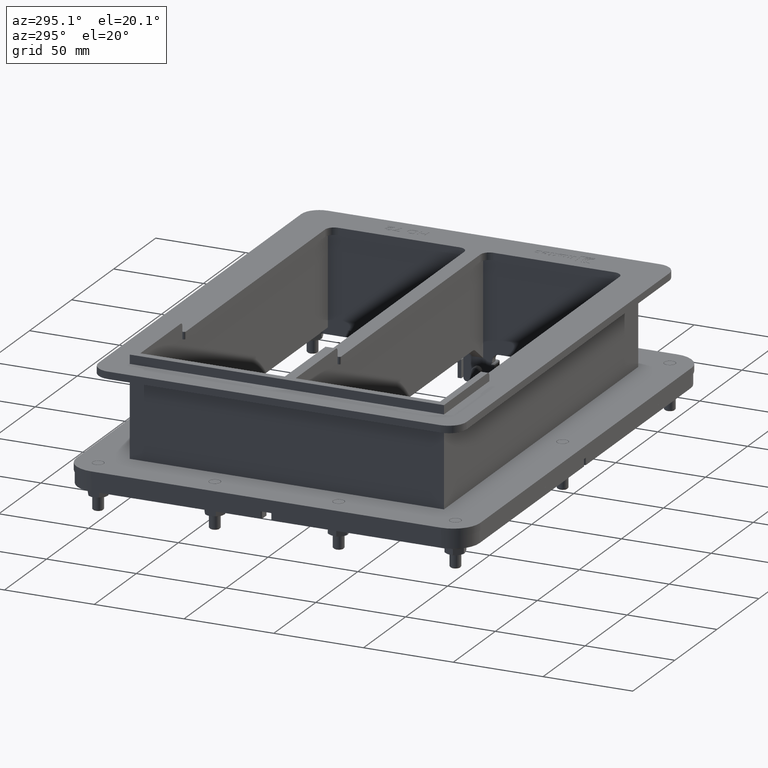
[diagram: clean part render]
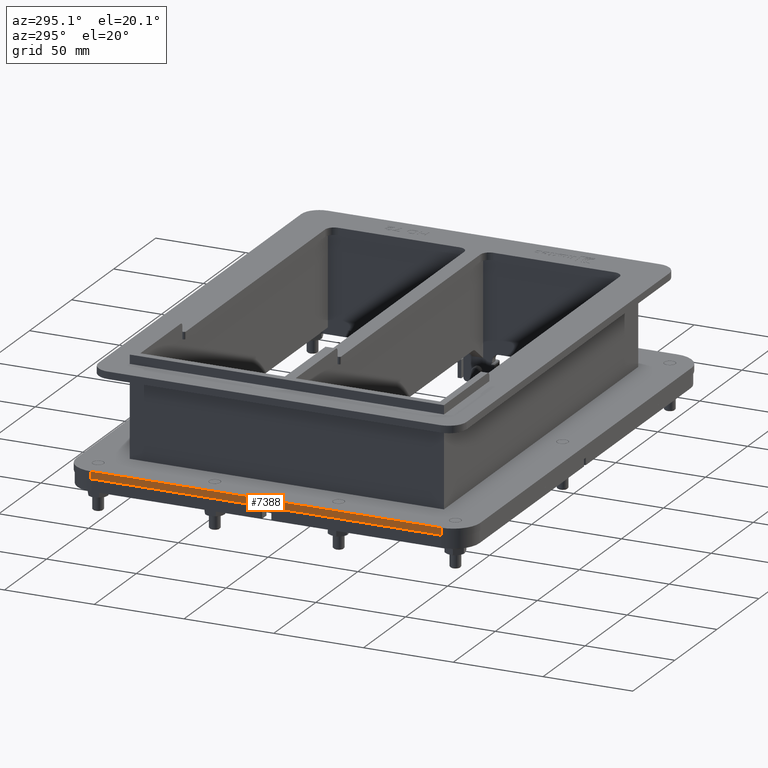
[diagram: same view with one face highlighted and labeled with its STEP entity id]
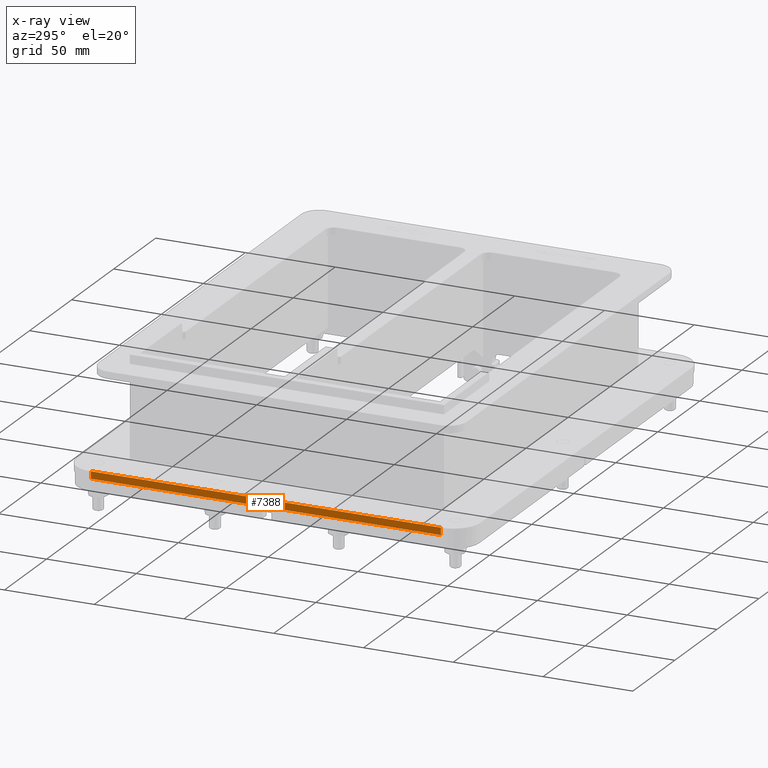
[diagram: x-ray of the same camera — body ghosted, the highlighted face saturated]
A machine part, auxiliary view. The second image highlights one B-rep face of the part: STEP entity #7388.
The next image is the same camera in x-ray: the body ghosted, the highlighted face saturated — about 0% of this face is hidden behind the body in this view.
In plain terms, the highlighted planar face has unit normal (-1, 0, 0).
Its self-contained STEP definition (entity closure, byte-faithful):
#580=PLANE('',#8235);
#897=FACE_OUTER_BOUND('',#1345,.T.);
#1345=EDGE_LOOP('',(#5720,#5721,#5722,#5723));
#1809=LINE('',#11358,#2526);
#1811=LINE('',#11364,#2528);
#1819=LINE('',#11406,#2536);
#1820=LINE('',#11407,#2537);
#2526=VECTOR('',#9216,10.);
#2528=VECTOR('',#9222,10.);
#2536=VECTOR('',#9258,10.);
#2537=VECTOR('',#9259,10.);
#3499=VERTEX_POINT('',#11355);
#3500=VERTEX_POINT('',#11357);
#3502=VERTEX_POINT('',#11363);
#3522=VERTEX_POINT('',#11405);
#4314=EDGE_CURVE('',#3499,#3500,#1809,.T.);
#4317=EDGE_CURVE('',#3500,#3502,#1811,.T.);
#4338=EDGE_CURVE('',#3522,#3499,#1819,.T.);
#4339=EDGE_CURVE('',#3502,#3522,#1820,.T.);
#5720=ORIENTED_EDGE('',*,*,#4314,.F.);
#5721=ORIENTED_EDGE('',*,*,#4338,.F.);
#5722=ORIENTED_EDGE('',*,*,#4339,.F.);
#5723=ORIENTED_EDGE('',*,*,#4317,.F.);
#7388=ADVANCED_FACE('',(#897),#580,.T.);
#8235=AXIS2_PLACEMENT_3D('',#11404,#9256,#9257);
#9216=DIRECTION('',(0.,0.,-1.));
#9222=DIRECTION('',(1.57898385724467E-16,1.,0.));
#9256=DIRECTION('center_axis',(-1.,1.57898385724467E-16,0.));
#9257=DIRECTION('ref_axis',(-1.57898385724467E-16,-1.,0.));
#9258=DIRECTION('',(-1.57898385724467E-16,-1.,0.));
#9259=DIRECTION('',(0.,0.,1.));
#11355=CARTESIAN_POINT('',(-140.5,-97.5,2.));
#11357=CARTESIAN_POINT('',(-140.5,-97.5,-2.));
#11358=CARTESIAN_POINT('',(-140.5,-97.5,0.));
#11363=CARTESIAN_POINT('',(-140.5,97.5,-2.));
#11364=CARTESIAN_POINT('',(-140.5,112.5,-2.));
#11404=CARTESIAN_POINT('Origin',(-140.5,112.5,0.));
#11405=CARTESIAN_POINT('',(-140.5,97.5,2.));
#11406=CARTESIAN_POINT('',(-140.5,112.5,2.));
#11407=CARTESIAN_POINT('',(-140.5,97.5,0.));